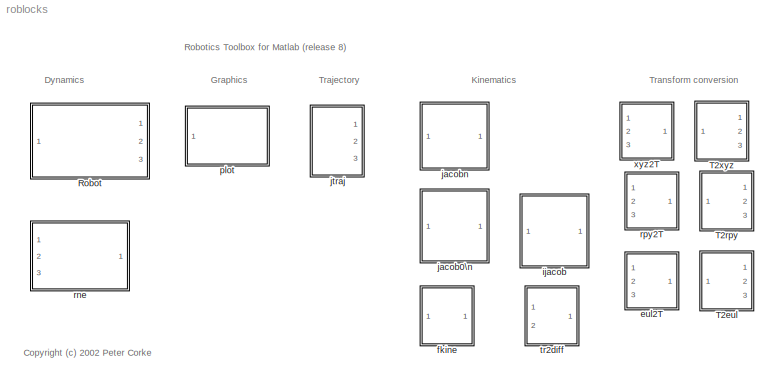
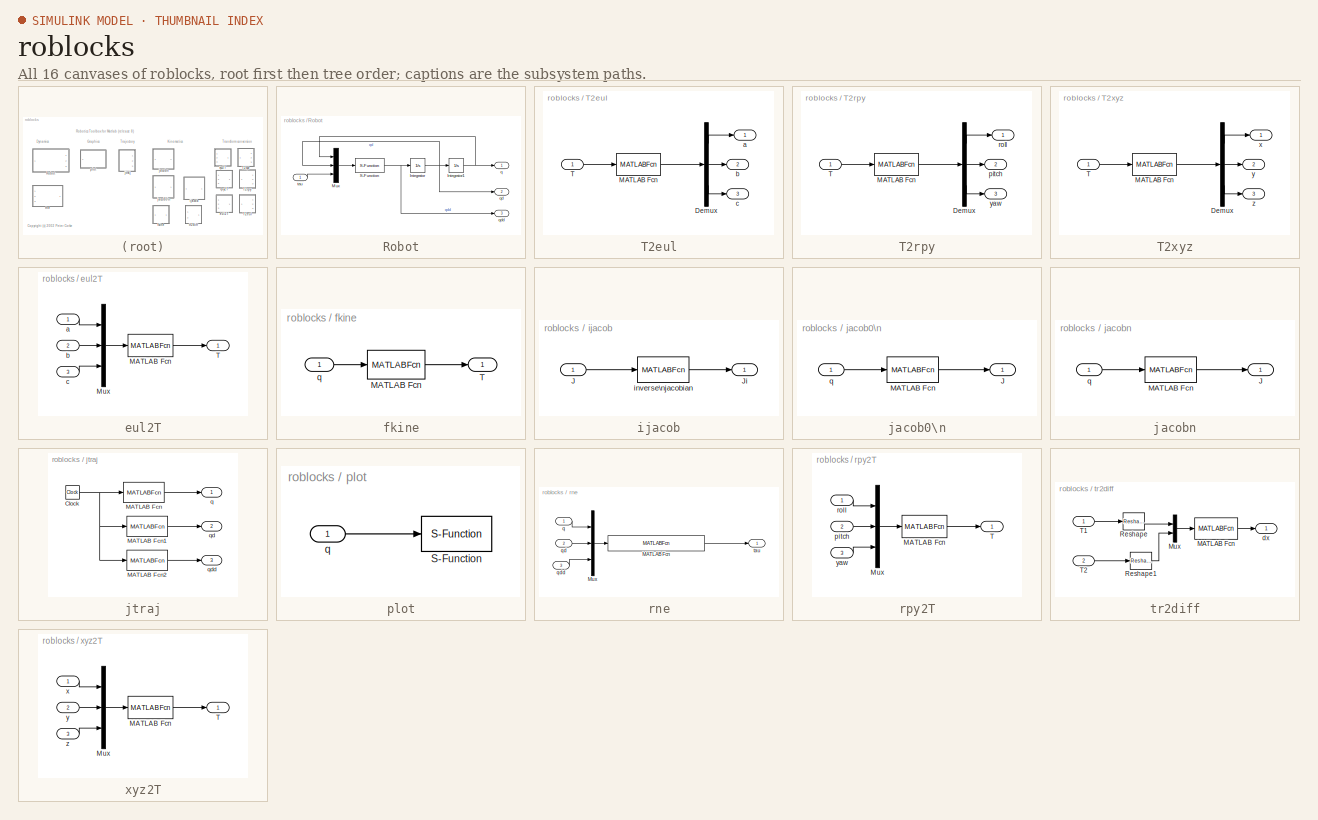
[diagram: thumbnail index - all 16 canvases of the model, root first then tree order]
MODEL roblocks
KIND library
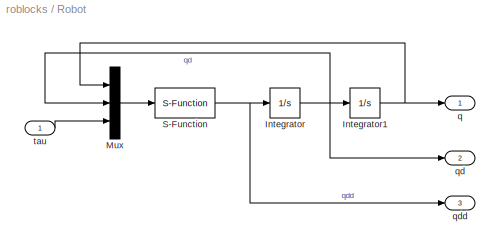
BLOCK [SubSystem] Robot
  FunctionWithSeparateData = off
  MaskCallbackString = |
  MaskDescription = Rigid-body dynamic model of robot.
  MaskDisplay = port_label('input', 1, 'tau')\nport_label('output', 1, 'q')\nport_label('output', 2, 'qd')\nport_label('output', 3, 'qdd')\ntext(0.1, 0.9,  name, 'horizontalAlignment', 'left')\n
  MaskEnableString = on,on
  MaskHelp = Simulates the forward (direct) rigid-body dynamics of the robot described by the given robot object.\n
  MaskHideContents = off
  MaskIconFrame = on
  MaskIconOpaque = on
  MaskIconRotate = none
  MaskIconUnits = normalized
  MaskInitialization = n = robot.n;\nname = robot.name;\n
  MaskPromptString = Robot object|Initial state
  MaskStyleString = edit,edit
  MaskTabNameString = ,
  MaskToolTipString = on,on
  MaskTunableValueString = on,on
  MaskValueString = robot|[0 0 0 0 0 0]
  MaskVarAliasString = ,
  MaskVariables = robot=@1;q0=@2;
  MaskVisibilityString = on,on
  MinAlgLoopOccurrences = off
  Opaque = off
  Ports = [1, 3]
  PropExecContextOutsideSubsystem = off
  RTWSystemCode = Auto
  RequestExecContextInheritance = off
BLOCK [Integrator] Robot/Integrator
  Ports = [1, 1]
BLOCK [Integrator] Robot/Integrator1
  Ports = [1, 1]
BLOCK [Mux] Robot/Mux
  DisplayOption = bar
  Inputs = 3
  Ports = [3, 1]
BLOCK [S-Function] Robot/S-Function
  EnableBusSupport = off
  FunctionName = slaccel
  Parameters = robot
  Ports = [1, 1]
BLOCK [Outport] Robot/q
  IconDisplay = Port number
BLOCK [Outport] Robot/qd
  IconDisplay = Port number
  Port = 2
BLOCK [Outport] Robot/qdd
  IconDisplay = Port number
  Port = 3
BLOCK [Inport] Robot/tau
  IconDisplay = Port number
  OutDataType = sfix(16)
  OutScaling = 2^0
BLOCK [SubSystem] T2eul
  FunctionWithSeparateData = off
  MaskDescription = Convert transform to Euler angles.
  MaskHideContents = off
  MaskIconFrame = on
  MaskIconOpaque = on
  MaskIconRotate = none
  MaskIconUnits = normalized
  MinAlgLoopOccurrences = off
  Opaque = off
  Ports = [1, 3]
  PropExecContextOutsideSubsystem = off
  RTWSystemCode = Auto
  RequestExecContextInheritance = off
BLOCK [Demux] T2eul/Demux
  Outputs = 3
  Ports = [1, 3]
BLOCK [MATLABFcn] T2eul/MATLAB Fcn
  MATLABFcn = tr2eul(u)
  OutputDimensions = 3
  Ports = [1, 1]
BLOCK [Inport] T2eul/T
  IconDisplay = Port number
BLOCK [Outport] T2eul/a
  IconDisplay = Port number
BLOCK [Outport] T2eul/b
  IconDisplay = Port number
  Port = 2
BLOCK [Outport] T2eul/c
  IconDisplay = Port number
  Port = 3
BLOCK [SubSystem] T2rpy
  FunctionWithSeparateData = off
  MaskDescription = Convert transform to roll/pitch/yaw angles.
  MaskHideContents = off
  MaskIconFrame = on
  MaskIconOpaque = on
  MaskIconRotate = none
  MaskIconUnits = normalized
  MinAlgLoopOccurrences = off
  Opaque = off
  Ports = [1, 3]
  PropExecContextOutsideSubsystem = off
  RTWSystemCode = Auto
  RequestExecContextInheritance = off
BLOCK [Demux] T2rpy/Demux
  Outputs = 3
  Ports = [1, 3]
BLOCK [MATLABFcn] T2rpy/MATLAB Fcn
  MATLABFcn = tr2rpy(u)
  OutputDimensions = 3
  Ports = [1, 1]
BLOCK [Inport] T2rpy/T
  IconDisplay = Port number
BLOCK [Outport] T2rpy/pitch
  IconDisplay = Port number
  Port = 2
BLOCK [Outport] T2rpy/roll
  IconDisplay = Port number
BLOCK [Outport] T2rpy/yaw
  IconDisplay = Port number
  Port = 3
BLOCK [SubSystem] T2xyz
  FunctionWithSeparateData = off
  MaskDescription = Convert transform to xyz scalars
  MaskHideContents = off
  MaskIconFrame = on
  MaskIconOpaque = on
  MaskIconRotate = none
  MaskIconUnits = normalized
  MinAlgLoopOccurrences = off
  Opaque = off
  Ports = [1, 3]
  PropExecContextOutsideSubsystem = off
  RTWSystemCode = Auto
  RequestExecContextInheritance = off
BLOCK [Demux] T2xyz/Demux
  Outputs = 3
  Ports = [1, 3]
BLOCK [MATLABFcn] T2xyz/MATLAB Fcn
  MATLABFcn = transl(u)
  OutputDimensions = 3
  Ports = [1, 1]
BLOCK [Inport] T2xyz/T
  IconDisplay = Port number
BLOCK [Outport] T2xyz/x
  IconDisplay = Port number
BLOCK [Outport] T2xyz/y
  IconDisplay = Port number
  Port = 2
BLOCK [Outport] T2xyz/z
  IconDisplay = Port number
  Port = 3
BLOCK [SubSystem] eul2T
  FunctionWithSeparateData = off
  MaskDescription = Convert Euler angles to transform.
  MaskHideContents = off
  MaskIconFrame = on
  MaskIconOpaque = on
  MaskIconRotate = none
  MaskIconUnits = normalized
  MinAlgLoopOccurrences = off
  Opaque = off
  Ports = [3, 1]
  PropExecContextOutsideSubsystem = off
  RTWSystemCode = Auto
  RequestExecContextInheritance = off
BLOCK [MATLABFcn] eul2T/MATLAB Fcn
  MATLABFcn = eul2tr(u)
  Output1D = off
  OutputDimensions = [4 4]
  Ports = [1, 1]
BLOCK [Mux] eul2T/Mux
  DisplayOption = bar
  Inputs = 3
  Ports = [3, 1]
BLOCK [Outport] eul2T/T
  IconDisplay = Port number
BLOCK [Inport] eul2T/a
  IconDisplay = Port number
BLOCK [Inport] eul2T/b
  IconDisplay = Port number
  Port = 2
BLOCK [Inport] eul2T/c
  IconDisplay = Port number
  Port = 3
BLOCK [SubSystem] fkine
  FunctionWithSeparateData = off
  MaskDescription = Robot forward kinematics.
  MaskDisplay = port_label('input', 1, 'q')\nport_label('output', 1, 'T')\ntext(0.9, 0.9, robot.name,  'horizontalAlignment', 'right')\n
  MaskEnableString = on
  MaskHelp = Compute homogeneous transform for robot end-effector given joint angles.
  MaskHideContents = off
  MaskIconFrame = on
  MaskIconOpaque = on
  MaskIconRotate = none
  MaskIconUnits = normalized
  MaskPromptString = Robot object
  MaskStyleString = edit
  MaskToolTipString = on
  MaskTunableValueString = on
  MaskValueString = robot
  MaskVariables = robot=@1;
  MaskVisibilityString = on
  MinAlgLoopOccurrences = off
  Opaque = off
  Ports = [1, 1]
  PropExecContextOutsideSubsystem = off
  RTWSystemCode = Auto
  RequestExecContextInheritance = off
BLOCK [MATLABFcn] fkine/MATLAB Fcn
  MATLABFcn = fkine(robot,u)
  Output1D = off
  OutputDimensions = [4 4]
  Ports = [1, 1]
BLOCK [Outport] fkine/T
  IconDisplay = Port number
BLOCK [Inport] fkine/q
  IconDisplay = Port number
BLOCK [SubSystem] ijacob
  FunctionWithSeparateData = off
  MaskDescription = Robot inverse Jacobian for world coordinates.\n\nOnly valid for square jacobians (ie/ 6DOF robots)
  MaskDisplay = text(0.4, 0.7, 'J', 'verticalAlignment', 'top', 'horizontalAlignment', 'left')\ntext(0.65, 0.65, '-1', 'verticalAlignment', 'bottom', 'horizontalAlignment', 'right')\nport_label('input', 1, 'J');\nport_label('output', 1, 'Ji')\n
  MaskHideContents = off
  MaskIconFrame = on
  MaskIconOpaque = on
  MaskIconRotate = none
  MaskIconUnits = normalized
  MinAlgLoopOccurrences = off
  Opaque = off
  Ports = [1, 1]
  PropExecContextOutsideSubsystem = off
  RTWSystemCode = Auto
  RequestExecContextInheritance = off
BLOCK [Inport] ijacob/J
  IconDisplay = Port number
BLOCK [Outport] ijacob/Ji
  IconDisplay = Port number
BLOCK [MATLABFcn] ijacob/inverse\njacobian
  MATLABFcn = inv(u)
  Output1D = off
  Ports = [1, 1]
BLOCK [SubSystem] jacob0\n
  FunctionWithSeparateData = off
  MaskDescription = Robot Jacobian for end-effector coordinates
  MaskDisplay = text(0.4, 0.7, 'J', 'verticalAlignment', 'top', 'horizontalAlignment', 'left')\ntext(0.4, 0.7, '0', 'verticalAlignment', 'bottom', 'horizontalAlignment', 'right')\ntext(0.5, 0.2, robot.name,  'horizontalAlignment', 'center')\nport_label('input', 1, 'q')\nport_label('output', 1, 'J')
  MaskEnableString = on
  MaskHideContents = off
  MaskIconFrame = on
  MaskIconOpaque = on
  MaskIconRotate = none
  MaskIconUnits = normalized
  MaskInitialization = n=robot.n;\n
  MaskPromptString = Robot object
  MaskStyleString = edit
  MaskToolTipString = on
  MaskTunableValueString = on
  MaskValueString = robot
  MaskVariables = robot=@1;
  MaskVisibilityString = on
  MinAlgLoopOccurrences = off
  Opaque = off
  Ports = [1, 1]
  PropExecContextOutsideSubsystem = off
  RTWSystemCode = Auto
  RequestExecContextInheritance = off
BLOCK [Outport] jacob0\n/J
  IconDisplay = Port number
BLOCK [MATLABFcn] jacob0\n/MATLAB Fcn
  MATLABFcn = jacob0(robot,u)
  Output1D = off
  OutputDimensions = [6 n]
  Ports = [1, 1]
BLOCK [Inport] jacob0\n/q
  IconDisplay = Port number
BLOCK [SubSystem] jacobn
  FunctionWithSeparateData = off
  MaskDescription = Robot Jacobian for end-effector coordinates
  MaskDisplay = text(0.5, 0.4, 'J', 'verticalAlignment', 'top', 'horizontalAlignment', 'left')\ntext(0.5, 0.4, 'n', 'verticalAlignment', 'bottom', 'horizontalAlignment', 'right')\ntext(0.9, 0.9, robot.name,  'horizontalAlignment', 'right')\nport_label('input', 1, 'q')\nport_label('output', 1, 'J')
  MaskEnableString = on
  MaskHideContents = off
  MaskIconFrame = on
  MaskIconOpaque = on
  MaskIconRotate = none
  MaskIconUnits = normalized
  MaskInitialization = n=robot.n;
  MaskPromptString = Robot object
  MaskStyleString = edit
  MaskToolTipString = on
  MaskTunableValueString = on
  MaskValueString = robot
  MaskVariables = robot=@1;
  MaskVisibilityString = on
  MinAlgLoopOccurrences = off
  Opaque = off
  Ports = [1, 1]
  PropExecContextOutsideSubsystem = off
  RTWSystemCode = Auto
  RequestExecContextInheritance = off
BLOCK [Outport] jacobn/J
  IconDisplay = Port number
BLOCK [MATLABFcn] jacobn/MATLAB Fcn
  MATLABFcn = jacobn(robot,u)
  Output1D = off
  OutputDimensions = [6 n]
  Ports = [1, 1]
BLOCK [Inport] jacobn/q
  IconDisplay = Port number
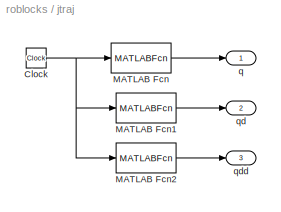
BLOCK [SubSystem] jtraj
  FunctionWithSeparateData = off
  MaskCallbackString = ||
  MaskDescription = Joint interpolated trajectory.
  MaskDisplay = port_label('output', 1, 'q')\nport_label('output', 2, 'qd')\nport_label('output', 3, 'qdd')
  MaskEnableString = on,on,on
  MaskHelp = Generate quintic polynomial to move from initial to final joint angles as specified.  Initial and final velocity are assumed to be zero.\n\nOutputs joint angles as well as joint angle rates.
  MaskHideContents = off
  MaskIconFrame = on
  MaskIconOpaque = on
  MaskIconRotate = none
  MaskIconUnits = normalized
  MaskInitialization = n = length(q0);\nif length(q0) ~= length(qf) ,\n error('q0 and qf must be same length')\nend\nt=[0:100]'/100*tmax;\n[q,qd,qdd] = jtraj(q0, qf, t);
  MaskPromptString = q0|qf|tmax
  MaskStyleString = edit,edit,edit
  MaskTabNameString = ,,
  MaskToolTipString = on,on,on
  MaskTunableValueString = on,on,on
  MaskValueString = [0 0 0 0 0 0]|[pi/4 pi/2 -pi/2 0 0 0]|10
  MaskVarAliasString = ,,
  MaskVariables = q0=@1;qf=@2;tmax=@3;
  MaskVisibilityString = on,on,on
  MinAlgLoopOccurrences = off
  Opaque = off
  Ports = [0, 3]
  PropExecContextOutsideSubsystem = off
  RTWSystemCode = Auto
  RequestExecContextInheritance = off
BLOCK [Clock] jtraj/Clock
  Decimation = 10
BLOCK [MATLABFcn] jtraj/MATLAB Fcn
  MATLABFcn = interp1(t,q,u)
  OutputDimensions = n
  Ports = [1, 1]
BLOCK [MATLABFcn] jtraj/MATLAB Fcn1
  MATLABFcn = interp1(t,qd,u)
  OutputDimensions = n
  Ports = [1, 1]
BLOCK [MATLABFcn] jtraj/MATLAB Fcn2
  MATLABFcn = interp1(t,qdd,u)
  OutputDimensions = n
  Ports = [1, 1]
BLOCK [Outport] jtraj/q
  IconDisplay = Port number
BLOCK [Outport] jtraj/qd
  IconDisplay = Port number
  Port = 2
BLOCK [Outport] jtraj/qdd
  IconDisplay = Port number
  Port = 3
BLOCK [SubSystem] plot
  FunctionWithSeparateData = off
  MaskCallbackString = \n
  MaskDescription = Graphical robot display.
  MaskDisplay = text(0.5, 0.5,  rname, 'horizontalAlignment', 'center')
  MaskEnableString = on
  MaskHelp = This block graphically displays the named robot
  MaskHideContents = off
  MaskIconFrame = on
  MaskIconOpaque = on
  MaskIconRotate = none
  MaskIconUnits = normalized
  MaskInitialization = plot(robot,zeros(1,robot.n));\nrname = robot.name;\nfprintf('**robot name is %s\\n', rname);
  MaskPromptString = Name of robot
  MaskStyleString = edit
  MaskToolTipString = on
  MaskTunableValueString = off
  MaskValueString = robot
  MaskVariables = robot=@1;
  MaskVisibilityString = on
  MinAlgLoopOccurrences = off
  Opaque = off
  Ports = [1]
  PropExecContextOutsideSubsystem = off
  RTWSystemCode = Auto
  RequestExecContextInheritance = off
BLOCK [S-Function] plot/S-Function
  EnableBusSupport = off
  FunctionName = slplotbot
  Parameters = robot
  Ports = [1]
BLOCK [Inport] plot/q
  IconDisplay = Port number
  OutDataType = sfix(16)
  OutScaling = 2^0
BLOCK [SubSystem] rne
  FunctionWithSeparateData = off
  MaskCallbackString = |
  MaskDescription = Rigid-body inverse dynamics.
  MaskDisplay = port_label('output', 1, 'tau')\nport_label('input', 1, 'q')\nport_label('input', 2, 'qd')\nport_label('input', 3, 'qdd')\ntext(0.9, 0.9,  robot.name, 'horizontalAlignment', 'right')\n
  MaskEnableString = on,on
  MaskHelp = Given a robot dynamic model and joint angle, rate and acceleration determine the required joint torque.  Useful for computed and inverse torque control schemes.
  MaskHideContents = off
  MaskIconFrame = on
  MaskIconOpaque = on
  MaskIconRotate = none
  MaskIconUnits = normalized
  MaskInitialization = n=robot.n;
  MaskPromptString = Robot object|Gravity
  MaskStyleString = edit,edit
  MaskTabNameString = ,
  MaskToolTipString = on,on
  MaskTunableValueString = on,on
  MaskValueString = robot|[0 0 9.81]
  MaskVarAliasString = ,
  MaskVariables = robot=@1;grav=@2;
  MaskVisibilityString = on,on
  MinAlgLoopOccurrences = off
  Opaque = off
  Ports = [3, 1]
  PropExecContextOutsideSubsystem = off
  RTWSystemCode = Auto
  RequestExecContextInheritance = off
BLOCK [MATLABFcn] rne/MATLAB Fcn
  MATLABFcn = rne(robot, u(1:n)', u(n+1:2*n)', u(2*n+1:3*n)')
  OutputDimensions = n
  Ports = [1, 1]
BLOCK [Mux] rne/Mux
  DisplayOption = bar
  Inputs = 3
  Ports = [3, 1]
BLOCK [Inport] rne/q
  IconDisplay = Port number
BLOCK [Inport] rne/qd
  IconDisplay = Port number
  Port = 2
BLOCK [Inport] rne/qdd
  IconDisplay = Port number
  Port = 3
BLOCK [Outport] rne/tau
  IconDisplay = Port number
BLOCK [SubSystem] rpy2T
  FunctionWithSeparateData = off
  MaskDescription = Convert roll/pitch/yaw angles to transform.
  MaskHideContents = off
  MaskIconFrame = on
  MaskIconOpaque = on
  MaskIconRotate = none
  MaskIconUnits = normalized
  MinAlgLoopOccurrences = off
  Opaque = off
  Ports = [3, 1]
  PropExecContextOutsideSubsystem = off
  RTWSystemCode = Auto
  RequestExecContextInheritance = off
BLOCK [MATLABFcn] rpy2T/MATLAB Fcn
  MATLABFcn = rpy2tr(u)
  Output1D = off
  OutputDimensions = [4 4]
  Ports = [1, 1]
BLOCK [Mux] rpy2T/Mux
  DisplayOption = bar
  Inputs = 3
  Ports = [3, 1]
BLOCK [Outport] rpy2T/T
  IconDisplay = Port number
BLOCK [Inport] rpy2T/pitch
  IconDisplay = Port number
  Port = 2
BLOCK [Inport] rpy2T/roll
  IconDisplay = Port number
BLOCK [Inport] rpy2T/yaw
  IconDisplay = Port number
  Port = 3
BLOCK [SubSystem] tr2diff
  FunctionWithSeparateData = off
  MaskDescription = Robot forward kinematics.
  MaskDisplay = port_label('input', 1, 'T1')\nport_label('input', 2, 'T2')\nport_label('output', 1, 'dx')\n\n
  MaskEnableString = on
  MaskHelp = Compute homogeneous transform for robot end-effector given joint angles.
  MaskHideContents = off
  MaskIconFrame = on
  MaskIconOpaque = on
  MaskIconRotate = none
  MaskIconUnits = normalized
  MaskPromptString = Robot object
  MaskStyleString = edit
  MaskToolTipString = on
  MaskTunableValueString = on
  MaskValueString = robot
  MaskVariables = robot=@1;
  MaskVisibilityString = on
  MinAlgLoopOccurrences = off
  Opaque = off
  Ports = [2, 1]
  PropExecContextOutsideSubsystem = off
  RTWSystemCode = Auto
  RequestExecContextInheritance = off
BLOCK [MATLABFcn] tr2diff/MATLAB Fcn
  MATLABFcn = tr2diff(reshape(u(1:16),4,4), reshape(u(17:32),4,4))
  OutputDimensions = 6
  Ports = [1, 1]
BLOCK [Mux] tr2diff/Mux
  DisplayOption = bar
  Inputs = 2
  Ports = [2, 1]
BLOCK [Reference] tr2diff/Reshape  REF=simulink3/Signals\n& Systems/Reshape
  OutputDimensionality = 1-D array
  OutputDimensions = [1,1]
  Ports = [1, 1]
  SourceBlock = simulink3/Signals\n& Systems/Reshape
  SourceType = Reshape
BLOCK [Reference] tr2diff/Reshape1  REF=simulink3/Signals\n& Systems/Reshape
  OutputDimensionality = 1-D array
  OutputDimensions = [1,1]
  Ports = [1, 1]
  SourceBlock = simulink3/Signals\n& Systems/Reshape
  SourceType = Reshape
BLOCK [Inport] tr2diff/T1
  IconDisplay = Port number
BLOCK [Inport] tr2diff/T2
  IconDisplay = Port number
  Port = 2
BLOCK [Outport] tr2diff/dx
  IconDisplay = Port number
BLOCK [SubSystem] xyz2T
  FunctionWithSeparateData = off
  MaskDescription = Convert xyz scalars to transform.
  MaskHideContents = off
  MaskIconFrame = on
  MaskIconOpaque = on
  MaskIconRotate = none
  MaskIconUnits = normalized
  MinAlgLoopOccurrences = off
  Opaque = off
  Ports = [3, 1]
  PropExecContextOutsideSubsystem = off
  RTWSystemCode = Auto
  RequestExecContextInheritance = off
BLOCK [MATLABFcn] xyz2T/MATLAB Fcn
  MATLABFcn = transl(u)
  Output1D = off
  OutputDimensions = [4 4]
  Ports = [1, 1]
BLOCK [Mux] xyz2T/Mux
  DisplayOption = bar
  Inputs = 3
  Ports = [3, 1]
BLOCK [Outport] xyz2T/T
  IconDisplay = Port number
BLOCK [Inport] xyz2T/x
  IconDisplay = Port number
BLOCK [Inport] xyz2T/y
  IconDisplay = Port number
  Port = 2
BLOCK [Inport] xyz2T/z
  IconDisplay = Port number
  Port = 3
ANNOTATION (root): <copyright redacted>
ANNOTATION (root): Dynamics
ANNOTATION (root): Graphics
ANNOTATION (root): Kinematics
ANNOTATION (root): Robotics Toolbox for Matlab (release 8)
ANNOTATION (root): Trajectory
ANNOTATION (root): Transform conversion
NET Robot/Integrator1:1 -> Robot/Mux:1, Robot/q:1
NET Robot/Integrator:1 -> Robot/Integrator1:1, Robot/Mux:2, Robot/qd:1
LINE Robot/Mux:1 -> Robot/S-Function:1
NET Robot/S-Function:1 -> Robot/Integrator:1, Robot/qdd:1
LINE Robot/tau:1 -> Robot/Mux:3
LINE T2eul/Demux:1 -> T2eul/a:1
LINE T2eul/Demux:2 -> T2eul/b:1
LINE T2eul/Demux:3 -> T2eul/c:1
LINE T2eul/MATLAB Fcn:1 -> T2eul/Demux:1
LINE T2eul/T:1 -> T2eul/MATLAB Fcn:1
LINE T2rpy/Demux:1 -> T2rpy/roll:1
LINE T2rpy/Demux:2 -> T2rpy/pitch:1
LINE T2rpy/Demux:3 -> T2rpy/yaw:1
LINE T2rpy/MATLAB Fcn:1 -> T2rpy/Demux:1
LINE T2rpy/T:1 -> T2rpy/MATLAB Fcn:1
LINE T2xyz/Demux:1 -> T2xyz/x:1
LINE T2xyz/Demux:2 -> T2xyz/y:1
LINE T2xyz/Demux:3 -> T2xyz/z:1
LINE T2xyz/MATLAB Fcn:1 -> T2xyz/Demux:1
LINE T2xyz/T:1 -> T2xyz/MATLAB Fcn:1
LINE eul2T/MATLAB Fcn:1 -> eul2T/T:1
LINE eul2T/Mux:1 -> eul2T/MATLAB Fcn:1
LINE eul2T/a:1 -> eul2T/Mux:1
LINE eul2T/b:1 -> eul2T/Mux:2
LINE eul2T/c:1 -> eul2T/Mux:3
LINE fkine/MATLAB Fcn:1 -> fkine/T:1
LINE fkine/q:1 -> fkine/MATLAB Fcn:1
LINE ijacob/J:1 -> ijacob/inverse\njacobian:1
LINE ijacob/inverse\njacobian:1 -> ijacob/Ji:1
LINE jacob0\n/MATLAB Fcn:1 -> jacob0\n/J:1
LINE jacob0\n/q:1 -> jacob0\n/MATLAB Fcn:1
LINE jacobn/MATLAB Fcn:1 -> jacobn/J:1
LINE jacobn/q:1 -> jacobn/MATLAB Fcn:1
NET jtraj/Clock:1 -> jtraj/MATLAB Fcn1:1, jtraj/MATLAB Fcn2:1, jtraj/MATLAB Fcn:1
LINE jtraj/MATLAB Fcn1:1 -> jtraj/qd:1
LINE jtraj/MATLAB Fcn2:1 -> jtraj/qdd:1
LINE jtraj/MATLAB Fcn:1 -> jtraj/q:1
LINE plot/q:1 -> plot/S-Function:1
LINE rne/MATLAB Fcn:1 -> rne/tau:1
LINE rne/Mux:1 -> rne/MATLAB Fcn:1
LINE rne/q:1 -> rne/Mux:1
LINE rne/qd:1 -> rne/Mux:2
LINE rne/qdd:1 -> rne/Mux:3
LINE rpy2T/MATLAB Fcn:1 -> rpy2T/T:1
LINE rpy2T/Mux:1 -> rpy2T/MATLAB Fcn:1
LINE rpy2T/pitch:1 -> rpy2T/Mux:2
LINE rpy2T/roll:1 -> rpy2T/Mux:1
LINE rpy2T/yaw:1 -> rpy2T/Mux:3
LINE tr2diff/MATLAB Fcn:1 -> tr2diff/dx:1
LINE tr2diff/Mux:1 -> tr2diff/MATLAB Fcn:1
LINE tr2diff/Reshape1:1 -> tr2diff/Mux:2
LINE tr2diff/Reshape:1 -> tr2diff/Mux:1
LINE tr2diff/T1:1 -> tr2diff/Reshape:1
LINE tr2diff/T2:1 -> tr2diff/Reshape1:1
LINE xyz2T/MATLAB Fcn:1 -> xyz2T/T:1
LINE xyz2T/Mux:1 -> xyz2T/MATLAB Fcn:1
LINE xyz2T/x:1 -> xyz2T/Mux:1
LINE xyz2T/y:1 -> xyz2T/Mux:2
LINE xyz2T/z:1 -> xyz2T/Mux:3
note: NET lines group one-source signal fan-out (src -> all destinations, sorted); 1:1 wires keep LINE
